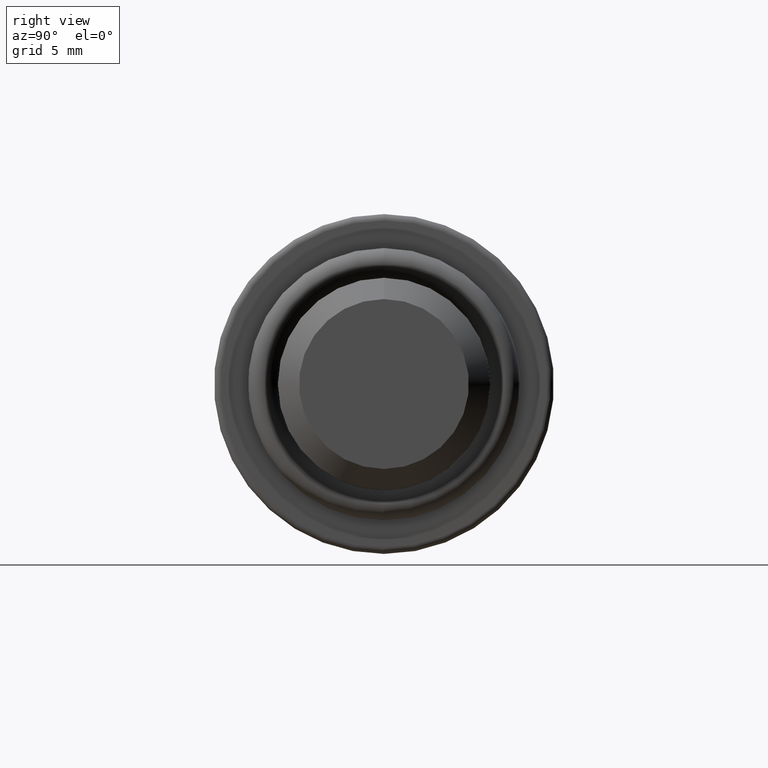
[diagram: clean part render]
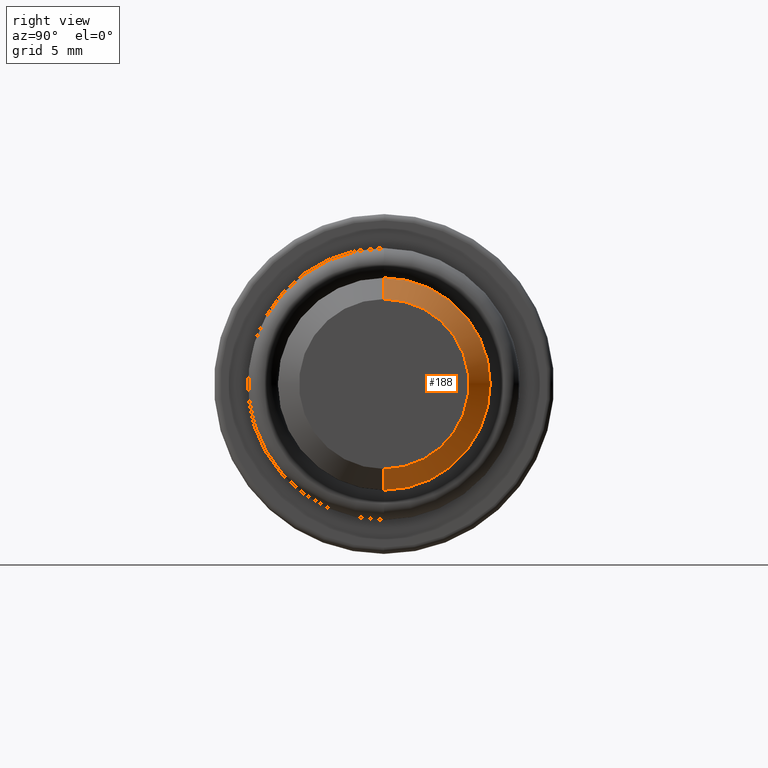
[diagram: same view with one face highlighted and labeled with its STEP entity id]
A machine part, right view. The second image highlights one B-rep face of the part: STEP entity #188.
In plain terms, the highlighted conical surface has half-angle 45 deg.
Its self-contained STEP definition (entity closure, byte-faithful):
#6 = LINE ( 'NONE', #182, #668 ) ;
#67 = VERTEX_POINT ( 'NONE', #757 ) ;
#70 = DIRECTION ( 'NONE',  ( -1.000000000000000000, 0.0000000000000000000, 0.0000000000000000000 ) ) ;
#93 = VERTEX_POINT ( 'NONE', #248 ) ;
#104 = CARTESIAN_POINT ( 'NONE',  ( 19.00000000000000000, 0.0000000000000000000, 5.000000000000000000 ) ) ;
#107 = ORIENTED_EDGE ( 'NONE', *, *, #427, .F. ) ;
#125 = CONICAL_SURFACE ( 'NONE', #180, 4.000000000000007100, 0.7853981633974445000 ) ;
#129 = EDGE_CURVE ( 'NONE', #93, #751, #6, .T. ) ;
#135 = CARTESIAN_POINT ( 'NONE',  ( 20.00000000000000000, 0.0000000000000000000, 0.0000000000000000000 ) ) ;
#137 = CIRCLE ( 'NONE', #424, 4.000000000000007100 ) ;
#175 = DIRECTION ( 'NONE',  ( -1.000000000000000000, 0.0000000000000000000, 0.0000000000000000000 ) ) ;
#180 = AXIS2_PLACEMENT_3D ( 'NONE', #135, #175, #633 ) ;
#182 = CARTESIAN_POINT ( 'NONE',  ( 20.00000000000000000, 0.0000000000000000000, 4.000000000000007100 ) ) ;
#188 = ADVANCED_FACE ( 'NONE', ( #646 ), #125, .T. ) ;
#241 = ORIENTED_EDGE ( 'NONE', *, *, #682, .F. ) ;
#244 = DIRECTION ( 'NONE',  ( -0.7071067811865503500, 8.659560562354900800E-017, -0.7071067811865446900 ) ) ;
#248 = CARTESIAN_POINT ( 'NONE',  ( 20.00000000000000000, 0.0000000000000000000, 4.000000000000007100 ) ) ;
#256 = EDGE_CURVE ( 'NONE', #734, #67, #758, .T. ) ;
#286 = DIRECTION ( 'NONE',  ( 1.000000000000000000, 0.0000000000000000000, 0.0000000000000000000 ) ) ;
#326 = EDGE_LOOP ( 'NONE', ( #107, #762, #241, #760 ) ) ;
#356 = CARTESIAN_POINT ( 'NONE',  ( 20.00000000000000000, 4.898587196589421700E-016, -4.000000000000007100 ) ) ;
#411 = CARTESIAN_POINT ( 'NONE',  ( 20.00000000000000000, 0.0000000000000000000, 0.0000000000000000000 ) ) ;
#424 = AXIS2_PLACEMENT_3D ( 'NONE', #411, #286, #604 ) ;
#427 = EDGE_CURVE ( 'NONE', #734, #93, #137, .T. ) ;
#446 = DIRECTION ( 'NONE',  ( -0.7071067811865503500, 0.0000000000000000000, 0.7071067811865446900 ) ) ;
#523 = CIRCLE ( 'NONE', #744, 5.000000000000000000 ) ;
#525 = CARTESIAN_POINT ( 'NONE',  ( 19.00000000000000000, 0.0000000000000000000, 0.0000000000000000000 ) ) ;
#582 = DIRECTION ( 'NONE',  ( 0.0000000000000000000, 0.0000000000000000000, -1.000000000000000000 ) ) ;
#590 = VECTOR ( 'NONE', #244, 1000.000000000000100 ) ;
#603 = CARTESIAN_POINT ( 'NONE',  ( 20.00000000000000000, 5.510910596163093500E-016, -4.000000000000007100 ) ) ;
#604 = DIRECTION ( 'NONE',  ( 0.0000000000000000000, 0.0000000000000000000, -1.000000000000000000 ) ) ;
#633 = DIRECTION ( 'NONE',  ( 0.0000000000000000000, 0.0000000000000000000, 1.000000000000000000 ) ) ;
#646 = FACE_OUTER_BOUND ( 'NONE', #326, .T. ) ;
#668 = VECTOR ( 'NONE', #446, 1000.000000000000100 ) ;
#682 = EDGE_CURVE ( 'NONE', #751, #67, #523, .T. ) ;
#734 = VERTEX_POINT ( 'NONE', #603 ) ;
#744 = AXIS2_PLACEMENT_3D ( 'NONE', #525, #70, #582 ) ;
#751 = VERTEX_POINT ( 'NONE', #104 ) ;
#757 = CARTESIAN_POINT ( 'NONE',  ( 19.00000000000000000, 6.123233995736766300E-016, -5.000000000000000000 ) ) ;
#758 = LINE ( 'NONE', #356, #590 ) ;
#760 = ORIENTED_EDGE ( 'NONE', *, *, #129, .F. ) ;
#762 = ORIENTED_EDGE ( 'NONE', *, *, #256, .T. ) ;